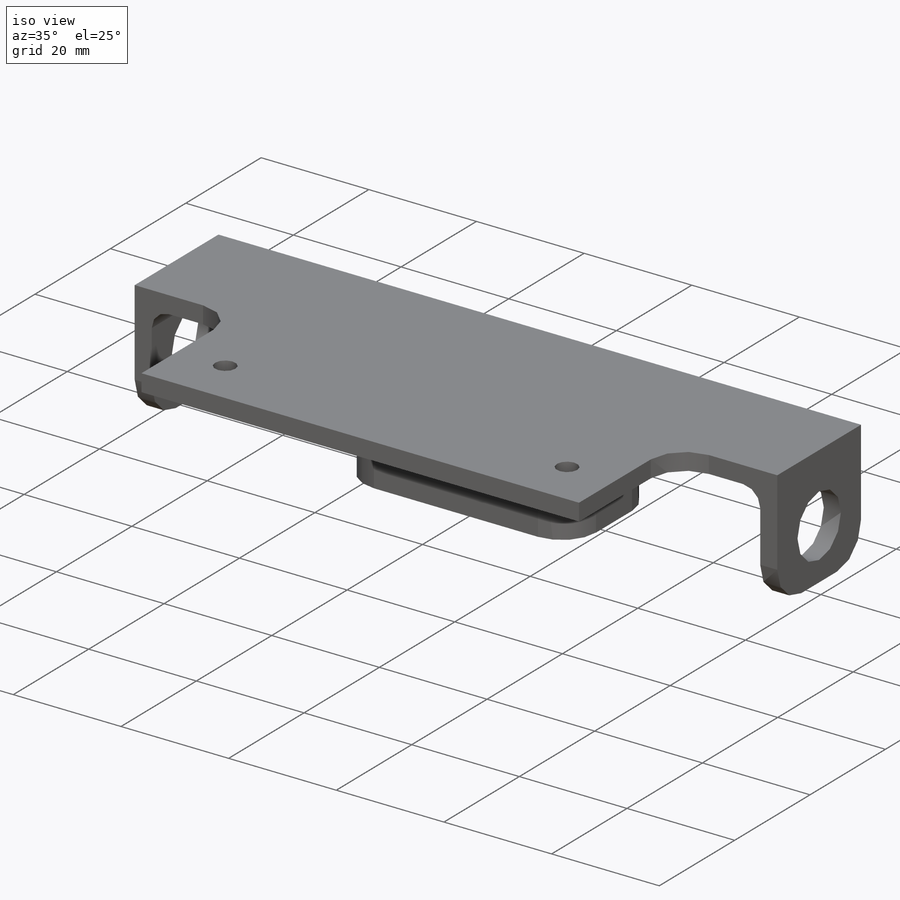
[diagram: iso view]
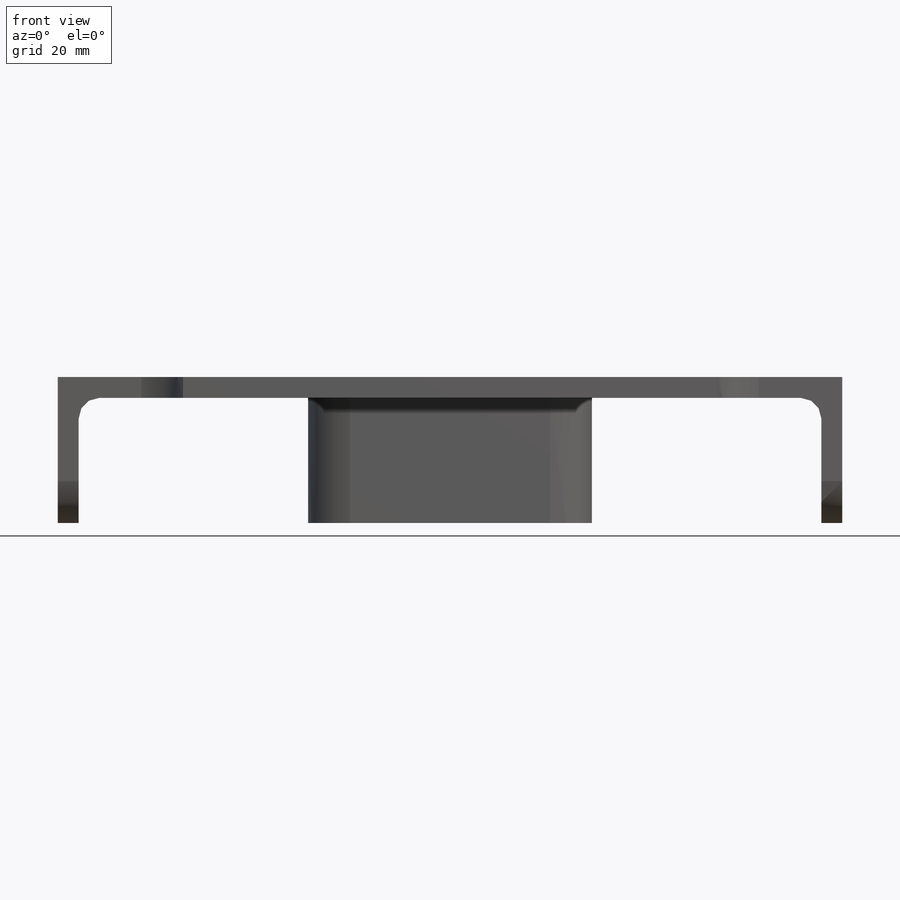
[diagram: front view]
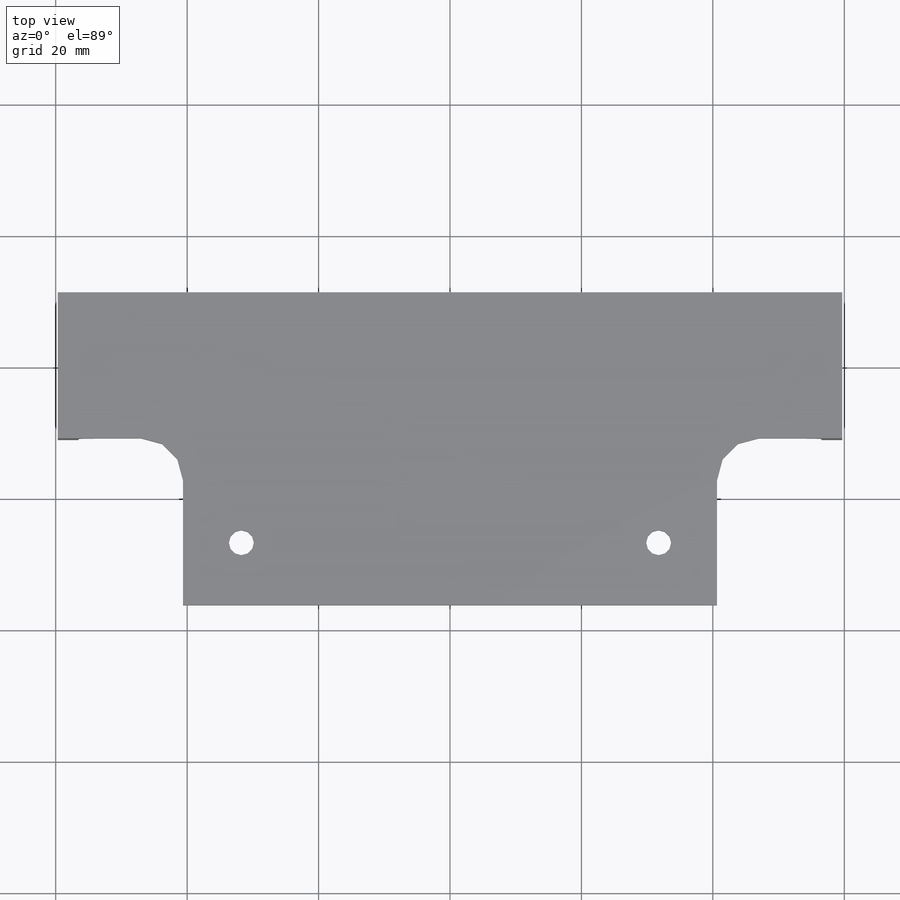
[diagram: top view]
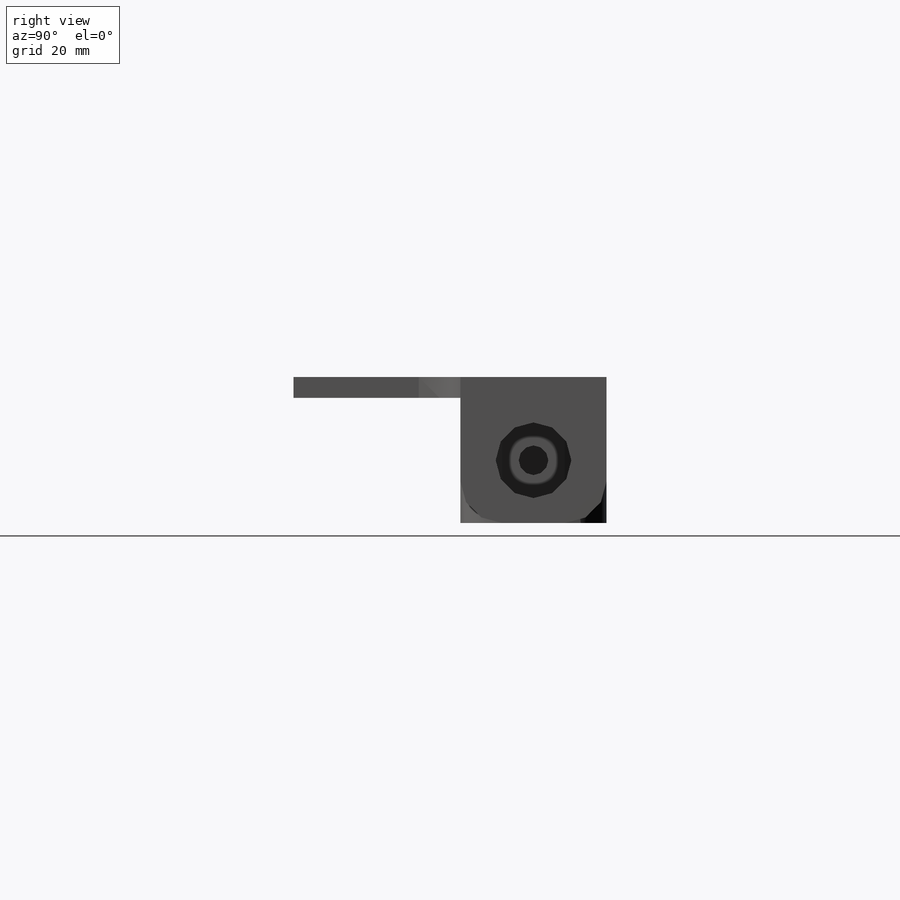
[diagram: right view]
SOLIDWORKS PART (.sldprt)
format: sldprt  version: not decoded by parser v0  size: 437,248 bytes
history: native  units: mm
features: sketch x13, extrude x4, hole x3, fillet x3, material x1, cut_extrude x1 (+11 scaffold rows collapsed)
feature tree (36):
  scaffold x11  (default folders/planes/origin — collapsed)
  material  "Delrin"
  sketch  "Sketch1"  dims[c1.D5=3.175mm c1.D9=6.35mm c1.D1=15.875mm c1.D2=15.875mm c1.D3=7.9375mm c1.D4=2.54mm c1.D6=3.175mm c1.D7=3.175mm c1.D8=3.175mm c2.D4=2.54mm c2.D6=3.175mm]
  extrude  "Extrude1"  Depth=25.4mm
  sketch  "Sketch2"  dims[c1.D1=6.35mm c1.D3=6.35mm c1.D8=6.35mm c1.D9=3.175mm c2.D3=6.35mm c2.D2=63.5mm c2.D4=50.8mm c2.D5=38.1mm c2.D6=31.75mm c2.D7=63.5mm c3.D2=38.1mm c3.D1=38.1mm c4.D2=38.1mm]
  extrude  "Extrude2"  Depth=3.175mm
  sketch  "Sketch3"  dims[D1=3.175mm D2=3.175mm]
  extrude  "Extrude3"  Depth=19.05mm
  hole  "Tap Drill for 1/2 Tap1"  Diameter=11.50874mm Depth=6.35mm
  sketch  "3DSketch1"  dims[D1=12.7mm D2=12.7mm D3=11.1125mm D4=11.1125mm]
  sketch  "Sketch4"  dims[hole-wizard template sketch: 46 standard entries collapsed; hole parameters kept: c15.Hole Dia.=~11.50874mm c15.Hole Depth=6.35mm c15.D3=~14.816244mm c15.Drill Angle=118.0deg]
  hole  "#8 Clearance Hole1"  Diameter=4.4958mm Depth=6.35mm
  sketch  "3DSketch2"  dims[c1.D1=~8.32303mm c1.D5=10.16mm c1.D2=9.6415mm c2.D5=10.16mm c2.D3=4.7625mm c2.D4=4.7625mm c2.D1=12.7mm c2.D2=12.7mm]
  sketch  "Sketch5"  dims[hole-wizard template sketch: 47 standard entries collapsed; hole parameters kept: c15.Hole Depth=6.35mm c15.D3=~14.816244mm c15.Drill Angle=118.0deg]
  fillet  "Fillet1"  Radius=6.35mm
  fillet  "Fillet3"  Radius=3.175mm
  sketch  "Sketch7"  dims[D1=19.05mm D2=19.05mm]
  extrude  "Extrude4"  Depth=25.4mm
  fillet  "Fillet4"  Radius=6.35mm
  hole  "#6 Clearance Hole1"  Diameter=3.7973mm Depth=9.652mm
  sketch  "3DSketch3"  dims[c1.D1=63.5mm c1.D2=~36.446465mm c1.D3=31.75mm c2.D2=31.75mm]
  sketch  "Sketch6"  dims[hole-wizard template sketch: 47 standard entries collapsed; hole parameters kept: c15.Hole Depth=9.652mm c15.D3=~14.816244mm c15.Drill Angle=118.0deg]
  sketch  "Sketch8"
  cut_extrude  "Cut-Extrude1"  Depth=57.15mm
  sketch  "Sketch10"  dims[D1=2.54mm]
  sketch  "Sketch11"  dims[D1=8.89mm]
decode coverage: 23 of 24 modeling features carry decoded parameters
note: ~ marks probable driven/reference dimensions
note: suppression state not decoded; provenance and decode notes live in map.json
